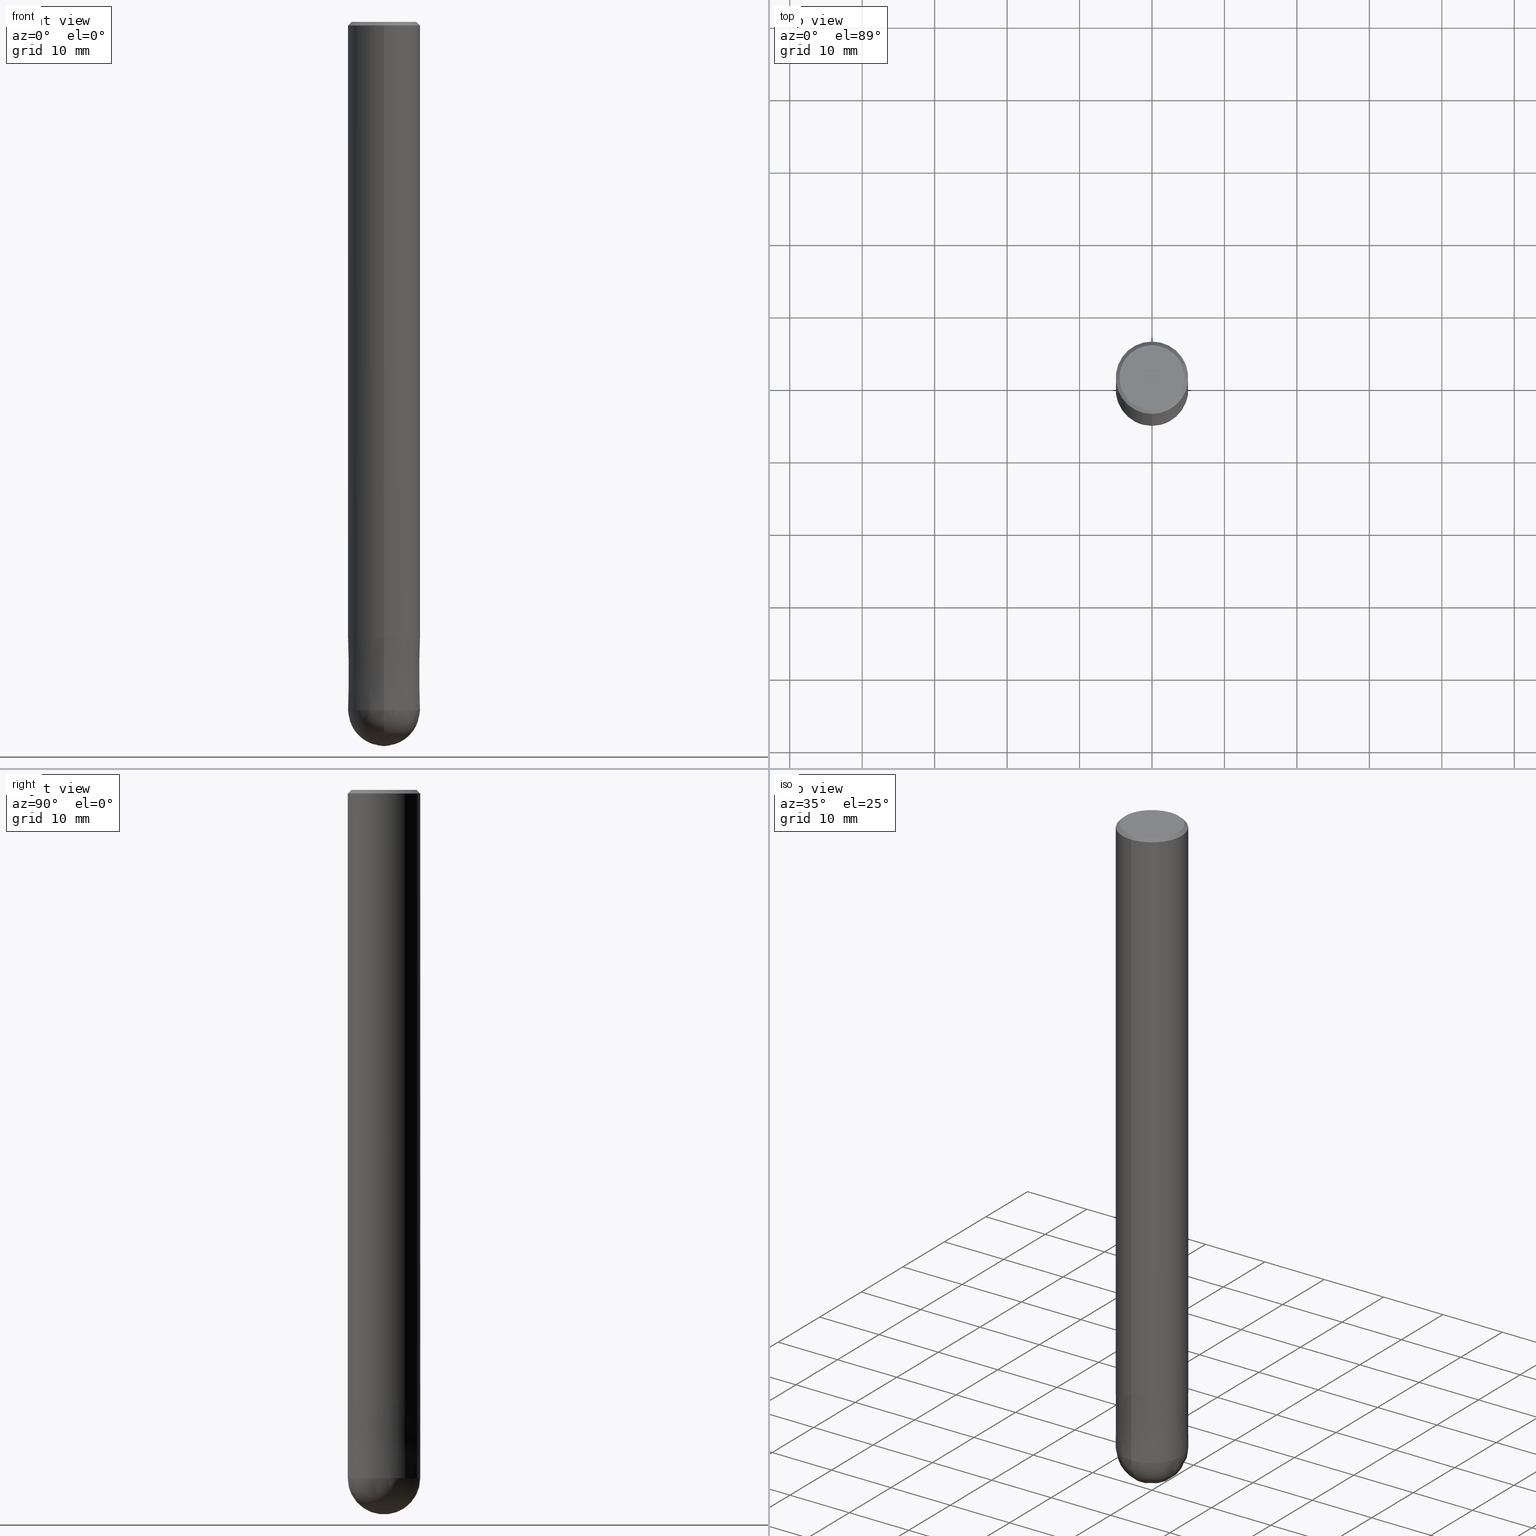
[diagram: canonical four-view strip — front | top / right | iso, engineering-drawing reading convention]
A machine part, canonical four-view strip (front | top / right | iso — engineering-drawing reading convention). The complete STEP part file that produces these views, byte-faithful:
ISO-10303-21;
HEADER;
FILE_DESCRIPTION(('no description'),'unknown implementation level');
FILE_NAME('HFB4100-1500-Huellk.stp','  ',('CIMSOURCE GmbH'),('CADClick - KiM GmbH - www.kimweb.de'),'unknown preprocess','ACIS','unknown authorization');
FILE_SCHEMA(('automotive_design'));
ENDSEC;
DATA;
#1=MECHANICAL_DESIGN_GEOMETRIC_PRESENTATION_REPRESENTATION(' ',(#10,#11,#12,#13,#14,#15,#16,#17,#18,#19,#20,#21,#22,#23,#24,#25,#26,#27,#28,#29,#30,#31,#32,#33,#34,#35,#36,#37,#38,#39,#40,#41,#42,#43,#44,#45,#46,#47),#6);
#2=PRODUCT_DEFINITION_CONTEXT('',#48,'design');
#3=APPLICATION_PROTOCOL_DEFINITION('INTERNATIONAL STANDARD','automotive_design',1994,#48);
#4=PRODUCT_CATEGORY_RELATIONSHIP('NONE','NONE',#49,#50);
#5=SHAPE_DEFINITION_REPRESENTATION(#51,#52);
#6= (GEOMETRIC_REPRESENTATION_CONTEXT(3)GLOBAL_UNCERTAINTY_ASSIGNED_CONTEXT((#55))GLOBAL_UNIT_ASSIGNED_CONTEXT((#57,#58,#59))REPRESENTATION_CONTEXT('NONE','WORKSPACE'));
#10=STYLED_ITEM('',(#61),#62);
#11=STYLED_ITEM('',(#63),#64);
#12=STYLED_ITEM('',(#65),#66);
#13=STYLED_ITEM('',(#67),#68);
#14=STYLED_ITEM('',(#69),#70);
#15=STYLED_ITEM('',(#71),#72);
#16=STYLED_ITEM('',(#73),#74);
#17=STYLED_ITEM('',(#75),#76);
#18=STYLED_ITEM('',(#77),#78);
#19=STYLED_ITEM('',(#79),#80);
#20=STYLED_ITEM('',(#81),#82);
#21=STYLED_ITEM('',(#83),#84);
#22=STYLED_ITEM('',(#85),#86);
#23=STYLED_ITEM('',(#87),#88);
#24=STYLED_ITEM('',(#89),#90);
#25=STYLED_ITEM('',(#91),#92);
#26=STYLED_ITEM('',(#93),#94);
#27=STYLED_ITEM('',(#95),#96);
#28=STYLED_ITEM('',(#97),#98);
#29=STYLED_ITEM('',(#99),#100);
#30=STYLED_ITEM('',(#101),#102);
#31=STYLED_ITEM('',(#103),#104);
#32=STYLED_ITEM('',(#105),#106);
#33=STYLED_ITEM('',(#107),#108);
#34=STYLED_ITEM('',(#109),#110);
#35=STYLED_ITEM('',(#111),#112);
#36=STYLED_ITEM('',(#113),#114);
#37=STYLED_ITEM('',(#115),#116);
#38=STYLED_ITEM('',(#117),#118);
#39=STYLED_ITEM('',(#119),#120);
#40=STYLED_ITEM('',(#121),#122);
#41=STYLED_ITEM('',(#123),#124);
#42=STYLED_ITEM('',(#125),#126);
#43=STYLED_ITEM('',(#127),#128);
#44=STYLED_ITEM('',(#129),#130);
#45=STYLED_ITEM('',(#131),#132);
#46=STYLED_ITEM('',(#133),#134);
#47=STYLED_ITEM('',(#135),#136);
#48=APPLICATION_CONTEXT(' ');
#49=PRODUCT_CATEGORY('part','NONE');
#50=PRODUCT_RELATED_PRODUCT_CATEGORY('detail',' ',(#137));
#51=PRODUCT_DEFINITION_SHAPE('NONE','NONE',#138);
#52=ADVANCED_BREP_SHAPE_REPRESENTATION('1',(#132,#139),#6);
#55=UNCERTAINTY_MEASURE_WITH_UNIT(LENGTH_MEASURE(1.0E-006),#57,'','');
#57= (CONVERSION_BASED_UNIT('MILLIMETRE',#142)LENGTH_UNIT()NAMED_UNIT(#145));
#58= (NAMED_UNIT(#147)PLANE_ANGLE_UNIT()SI_UNIT($,.RADIAN.));
#59= (NAMED_UNIT(#147)SOLID_ANGLE_UNIT()SI_UNIT($,.STERADIAN.));
#61=PRESENTATION_STYLE_ASSIGNMENT((#153));
#62=EDGE_CURVE('',#110,#116,#154,.T.);
#63=PRESENTATION_STYLE_ASSIGNMENT((#155));
#64=ADVANCED_FACE('',(#156),#157,.T.);
#65=PRESENTATION_STYLE_ASSIGNMENT((#158));
#66=VERTEX_POINT('',#159);
#67=PRESENTATION_STYLE_ASSIGNMENT((#160));
#68=EDGE_CURVE('',#134,#118,#161,.T.);
#69=PRESENTATION_STYLE_ASSIGNMENT((#162));
#70=ADVANCED_FACE('',(#163,#164),#165,.T.);
#71=PRESENTATION_STYLE_ASSIGNMENT((#166));
#72=VERTEX_POINT('',#167);
#73=PRESENTATION_STYLE_ASSIGNMENT((#168));
#74=EDGE_CURVE('',#136,#116,#169,.T.);
#75=PRESENTATION_STYLE_ASSIGNMENT((#170));
#76=VERTEX_POINT('',#171);
#77=PRESENTATION_STYLE_ASSIGNMENT((#172));
#78=EDGE_CURVE('',#130,#76,#173,.T.);
#79=PRESENTATION_STYLE_ASSIGNMENT((#174));
#80=EDGE_CURVE('',#72,#136,#175,.T.);
#81=PRESENTATION_STYLE_ASSIGNMENT((#176));
#82=EDGE_CURVE('',#76,#130,#177,.T.);
#83=PRESENTATION_STYLE_ASSIGNMENT((#178));
#84=ADVANCED_FACE('',(#179),#180,.T.);
#85=PRESENTATION_STYLE_ASSIGNMENT((#181));
#86=EDGE_CURVE('',#134,#130,#182,.T.);
#87=PRESENTATION_STYLE_ASSIGNMENT((#183));
#88=ADVANCED_FACE('',(#184),#185,.T.);
#89=PRESENTATION_STYLE_ASSIGNMENT((#186));
#90=EDGE_CURVE('',#66,#134,#187,.T.);
#91=PRESENTATION_STYLE_ASSIGNMENT((#188));
#92=ADVANCED_FACE('',(#189),#190,.T.);
#93=PRESENTATION_STYLE_ASSIGNMENT((#191));
#94=EDGE_CURVE('',#110,#116,#192,.T.);
#95=PRESENTATION_STYLE_ASSIGNMENT((#193));
#96=ADVANCED_FACE('',(#194),#195,.T.);
#97=PRESENTATION_STYLE_ASSIGNMENT((#196));
#98=ADVANCED_FACE('',(#197),#198,.T.);
#99=PRESENTATION_STYLE_ASSIGNMENT((#199));
#100=EDGE_CURVE('',#106,#66,#200,.T.);
#101=PRESENTATION_STYLE_ASSIGNMENT((#201));
#102=ADVANCED_FACE('',(#202),#203,.T.);
#103=PRESENTATION_STYLE_ASSIGNMENT((#204));
#104=EDGE_CURVE('',#66,#106,#205,.T.);
#105=PRESENTATION_STYLE_ASSIGNMENT((#206));
#106=VERTEX_POINT('',#207);
#107=PRESENTATION_STYLE_ASSIGNMENT((#208));
#108=ADVANCED_FACE('',(#209),#210,.T.);
#109=PRESENTATION_STYLE_ASSIGNMENT((#211));
#110=VERTEX_POINT('',#212);
#111=PRESENTATION_STYLE_ASSIGNMENT((#213));
#112=ADVANCED_FACE('',(#214),#215,.T.);
#113=PRESENTATION_STYLE_ASSIGNMENT((#216));
#114=EDGE_CURVE('',#110,#72,#217,.T.);
#115=PRESENTATION_STYLE_ASSIGNMENT((#218));
#116=VERTEX_POINT('',#219);
#117=PRESENTATION_STYLE_ASSIGNMENT((#220));
#118=VERTEX_POINT('',#221);
#119=PRESENTATION_STYLE_ASSIGNMENT((#222));
#120=EDGE_CURVE('',#118,#134,#223,.T.);
#121=PRESENTATION_STYLE_ASSIGNMENT((#224));
#122=EDGE_CURVE('',#116,#110,#225,.T.);
#123=PRESENTATION_STYLE_ASSIGNMENT((#226));
#124=EDGE_CURVE('',#118,#106,#227,.T.);
#125=PRESENTATION_STYLE_ASSIGNMENT((#228));
#126=EDGE_CURVE('',#136,#72,#229,.T.);
#127=PRESENTATION_STYLE_ASSIGNMENT((#230));
#128=EDGE_CURVE('',#76,#118,#231,.T.);
#129=PRESENTATION_STYLE_ASSIGNMENT((#232));
#130=VERTEX_POINT('',#233);
#131=PRESENTATION_STYLE_ASSIGNMENT((#234));
#132=MANIFOLD_SOLID_BREP('1',#235);
#133=PRESENTATION_STYLE_ASSIGNMENT((#236));
#134=VERTEX_POINT('',#237);
#135=PRESENTATION_STYLE_ASSIGNMENT((#238));
#136=VERTEX_POINT('',#239);
#137=PRODUCT('1','1','PART-1-DESC',(#240));
#138=PRODUCT_DEFINITION('NONE','NONE',#241,#2);
#139=AXIS2_PLACEMENT_3D('',#242,#243,#244);
#142=LENGTH_MEASURE_WITH_UNIT(LENGTH_MEASURE(1.0),#245);
#145=DIMENSIONAL_EXPONENTS(1.0,0.0,0.0,0.0,0.0,0.0,0.0);
#147=DIMENSIONAL_EXPONENTS(0.0,0.0,0.0,0.0,0.0,0.0,0.0);
#153=CURVE_STYLE('',#246,POSITIVE_LENGTH_MEASURE(1.0E-006),#247);
#154=CIRCLE('',#248,4.99999999999999);
#155=SURFACE_STYLE_USAGE(.BOTH.,#249);
#156=FACE_OUTER_BOUND('',#250,.T.);
#157=PLANE('',#251);
#158=POINT_STYLE(' ',#252,POSITIVE_LENGTH_MEASURE(1.0E-006),#253);
#159=CARTESIAN_POINT('',(6.12303176911189E-016,-5.0,-85.0));
#160=CURVE_STYLE('',#254,POSITIVE_LENGTH_MEASURE(1.0E-006),#255);
#161=CIRCLE('',#256,5.0);
#162=SURFACE_STYLE_USAGE(.BOTH.,#257);
#163=FACE_OUTER_BOUND('',#258,.T.);
#164=FACE_BOUND('',#259,.T.);
#165=PLANE('',#260);
#166=POINT_STYLE(' ',#261,POSITIVE_LENGTH_MEASURE(1.0E-006),#262);
#167=CARTESIAN_POINT('',(6.1229093084765E-016,-4.9999,-85.0));
#168=CURVE_STYLE('',#263,POSITIVE_LENGTH_MEASURE(1.0E-006),#264);
#169=LINE('',#265,#266);
#170=POINT_STYLE(' ',#267,POSITIVE_LENGTH_MEASURE(1.0E-006),#268);
#171=CARTESIAN_POINT('',(0.0,4.5,0.0));
#172=CURVE_STYLE('',#269,POSITIVE_LENGTH_MEASURE(1.0E-006),#270);
#173=CIRCLE('',#271,4.5);
#174=CURVE_STYLE('',#272,POSITIVE_LENGTH_MEASURE(1.0E-006),#273);
#175=CIRCLE('',#274,4.9999);
#176=CURVE_STYLE('',#275,POSITIVE_LENGTH_MEASURE(1.0E-006),#276);
#177=CIRCLE('',#277,4.5);
#178=SURFACE_STYLE_USAGE(.BOTH.,#278);
#179=FACE_OUTER_BOUND('',#279,.T.);
#180=CONICAL_SURFACE('',#280,4.99995,9.99999999973218E-006);
#181=CURVE_STYLE('',#281,POSITIVE_LENGTH_MEASURE(1.0E-006),#282);
#182=LINE('',#283,#284);
#183=SURFACE_STYLE_USAGE(.BOTH.,#285);
#184=FACE_OUTER_BOUND('',#286,.T.);
#185=CONICAL_SURFACE('',#287,4.75,0.785398163397448);
#186=CURVE_STYLE('',#288,POSITIVE_LENGTH_MEASURE(1.0E-006),#289);
#187=LINE('',#290,#291);
#188=SURFACE_STYLE_USAGE(.BOTH.,#292);
#189=FACE_OUTER_BOUND('',#293,.T.);
#190=CONICAL_SURFACE('',#294,4.75,0.785398163397448);
#191=CURVE_STYLE('',#295,POSITIVE_LENGTH_MEASURE(1.0E-006),#296);
#192=CIRCLE('',#297,5.0);
#193=SURFACE_STYLE_USAGE(.BOTH.,#298);
#194=FACE_OUTER_BOUND('',#299,.T.);
#195=SPHERICAL_SURFACE('',#300,4.99999999999999);
#196=SURFACE_STYLE_USAGE(.BOTH.,#301);
#197=FACE_OUTER_BOUND('',#302,.T.);
#198=SPHERICAL_SURFACE('',#303,4.99999999999999);
#199=CURVE_STYLE('',#304,POSITIVE_LENGTH_MEASURE(1.0E-006),#305);
#200=CIRCLE('',#306,5.0);
#201=SURFACE_STYLE_USAGE(.BOTH.,#307);
#202=FACE_OUTER_BOUND('',#308,.T.);
#203=CONICAL_SURFACE('',#309,4.99995,9.99999999973218E-006);
#204=CURVE_STYLE('',#310,POSITIVE_LENGTH_MEASURE(1.0E-006),#311);
#205=CIRCLE('',#312,5.0);
#206=POINT_STYLE(' ',#313,POSITIVE_LENGTH_MEASURE(1.0E-006),#314);
#207=CARTESIAN_POINT('',(0.0,5.0,-85.0));
#208=SURFACE_STYLE_USAGE(.BOTH.,#315);
#209=FACE_OUTER_BOUND('',#316,.T.);
#210=CYLINDRICAL_SURFACE('',#317,5.0);
#211=POINT_STYLE(' ',#318,POSITIVE_LENGTH_MEASURE(1.0E-006),#319);
#212=CARTESIAN_POINT('',(6.12303176911188E-016,-5.0,-95.0));
#213=SURFACE_STYLE_USAGE(.BOTH.,#320);
#214=FACE_OUTER_BOUND('',#321,.T.);
#215=CYLINDRICAL_SURFACE('',#322,5.0);
#216=CURVE_STYLE('',#323,POSITIVE_LENGTH_MEASURE(1.0E-006),#324);
#217=LINE('',#325,#326);
#218=POINT_STYLE(' ',#327,POSITIVE_LENGTH_MEASURE(1.0E-006),#328);
#219=CARTESIAN_POINT('',(0.0,5.0,-95.0));
#220=POINT_STYLE(' ',#329,POSITIVE_LENGTH_MEASURE(1.0E-006),#330);
#221=CARTESIAN_POINT('',(0.0,5.0,-0.5));
#222=CURVE_STYLE('',#331,POSITIVE_LENGTH_MEASURE(1.0E-006),#332);
#223=CIRCLE('',#333,5.0);
#224=CURVE_STYLE('',#334,POSITIVE_LENGTH_MEASURE(1.0E-006),#335);
#225=CIRCLE('',#336,5.0);
#226=CURVE_STYLE('',#337,POSITIVE_LENGTH_MEASURE(1.0E-006),#338);
#227=LINE('',#339,#340);
#228=CURVE_STYLE('',#341,POSITIVE_LENGTH_MEASURE(1.0E-006),#342);
#229=CIRCLE('',#343,4.9999);
#230=CURVE_STYLE('',#344,POSITIVE_LENGTH_MEASURE(1.0E-006),#345);
#231=LINE('',#346,#347);
#232=POINT_STYLE(' ',#348,POSITIVE_LENGTH_MEASURE(1.0E-006),#349);
#233=CARTESIAN_POINT('',(5.5107285922007E-016,-4.5,0.0));
#234=SURFACE_STYLE_USAGE(.BOTH.,#350);
#235=CLOSED_SHELL('',(#96,#84,#112,#92,#70,#64,#88,#108,#102,#98));
#236=POINT_STYLE(' ',#351,POSITIVE_LENGTH_MEASURE(1.0E-006),#352);
#237=CARTESIAN_POINT('',(6.12303176911189E-016,-5.0,-0.5));
#238=POINT_STYLE(' ',#353,POSITIVE_LENGTH_MEASURE(1.0E-006),#354);
#239=CARTESIAN_POINT('',(0.0,4.9999,-85.0));
#240=PRODUCT_CONTEXT('',#48,'mechanical');
#241=PRODUCT_DEFINITION_FORMATION_WITH_SPECIFIED_SOURCE(' ','NONE',#137,.NOT_KNOWN.);
#242=CARTESIAN_POINT('',(0.0,0.0,0.0));
#243=DIRECTION('',(0.0,0.0,1.0));
#244=DIRECTION('',(1.0,0.0,0.0));
#245= (NAMED_UNIT(#145)LENGTH_UNIT()SI_UNIT(.MILLI.,.METRE.));
#246=DRAUGHTING_PRE_DEFINED_CURVE_FONT('continuous');
#247=COLOUR_RGB('',0.800000011920929,0.800000011920929,0.800000011920929);
#248=AXIS2_PLACEMENT_3D('',#356,#357,#358);
#249=SURFACE_SIDE_STYLE('',(#359));
#250=EDGE_LOOP('',(#360,#361));
#251=AXIS2_PLACEMENT_3D('',#362,#363,#364);
#252=PRE_DEFINED_MARKER('');
#253=COLOUR_RGB('',0.498039215803146,0.498039215803146,0.498039215803146);
#254=DRAUGHTING_PRE_DEFINED_CURVE_FONT('continuous');
#255=COLOUR_RGB('',0.498039215803146,0.498039215803146,0.498039215803146);
#256=AXIS2_PLACEMENT_3D('',#365,#366,#367);
#257=SURFACE_SIDE_STYLE('',(#368));
#258=EDGE_LOOP('',(#369,#370));
#259=EDGE_LOOP('',(#371,#372));
#260=AXIS2_PLACEMENT_3D('',#373,#374,#375);
#261=PRE_DEFINED_MARKER('');
#262=COLOUR_RGB('',0.800000011920929,0.800000011920929,0.800000011920929);
#263=DRAUGHTING_PRE_DEFINED_CURVE_FONT('continuous');
#264=COLOUR_RGB('',0.800000011920929,0.800000011920929,0.800000011920929);
#265=CARTESIAN_POINT('',(-6.12297053879419E-016,4.99995,-90.0));
#266=VECTOR('',#376,1.0);
#267=PRE_DEFINED_MARKER('');
#268=COLOUR_RGB('',0.498039215803146,0.498039215803146,0.498039215803146);
#269=DRAUGHTING_PRE_DEFINED_CURVE_FONT('continuous');
#270=COLOUR_RGB('',0.498039215803146,0.498039215803146,0.498039215803146);
#271=AXIS2_PLACEMENT_3D('',#377,#378,#379);
#272=DRAUGHTING_PRE_DEFINED_CURVE_FONT('continuous');
#273=COLOUR_RGB('',0.800000011920929,0.800000011920929,0.800000011920929);
#274=AXIS2_PLACEMENT_3D('',#380,#381,#382);
#275=DRAUGHTING_PRE_DEFINED_CURVE_FONT('continuous');
#276=COLOUR_RGB('',0.498039215803146,0.498039215803146,0.498039215803146);
#277=AXIS2_PLACEMENT_3D('',#383,#384,#385);
#278=SURFACE_SIDE_STYLE('',(#386));
#279=EDGE_LOOP('',(#387,#388,#389,#390));
#280=AXIS2_PLACEMENT_3D('',#391,#392,#393);
#281=DRAUGHTING_PRE_DEFINED_CURVE_FONT('continuous');
#282=COLOUR_RGB('',0.498039215803146,0.498039215803146,0.498039215803146);
#283=CARTESIAN_POINT('',(5.81688018065629E-016,-4.75,-0.25));
#284=VECTOR('',#394,1.0);
#285=SURFACE_SIDE_STYLE('',(#395));
#286=EDGE_LOOP('',(#396,#397,#398,#399));
#287=AXIS2_PLACEMENT_3D('',#400,#401,#402);
#288=DRAUGHTING_PRE_DEFINED_CURVE_FONT('continuous');
#289=COLOUR_RGB('',0.498039215803146,0.498039215803146,0.498039215803146);
#290=CARTESIAN_POINT('',(6.12303176911189E-016,-5.0,-42.75));
#291=VECTOR('',#403,1.0);
#292=SURFACE_SIDE_STYLE('',(#404));
#293=EDGE_LOOP('',(#405,#406,#407,#408));
#294=AXIS2_PLACEMENT_3D('',#409,#410,#411);
#295=DRAUGHTING_PRE_DEFINED_CURVE_FONT('continuous');
#296=COLOUR_RGB('',0.800000011920929,0.800000011920929,0.800000011920929);
#297=AXIS2_PLACEMENT_3D('',#412,#413,#414);
#298=SURFACE_SIDE_STYLE('',(#415));
#299=EDGE_LOOP('',(#416,#417));
#300=AXIS2_PLACEMENT_3D('',#418,#419,#420);
#301=SURFACE_SIDE_STYLE('',(#421));
#302=EDGE_LOOP('',(#422,#423));
#303=AXIS2_PLACEMENT_3D('',#424,#425,#426);
#304=DRAUGHTING_PRE_DEFINED_CURVE_FONT('continuous');
#305=COLOUR_RGB('',0.498039215803146,0.498039215803146,0.498039215803146);
#306=AXIS2_PLACEMENT_3D('',#427,#428,#429);
#307=SURFACE_SIDE_STYLE('',(#430));
#308=EDGE_LOOP('',(#431,#432,#433,#434));
#309=AXIS2_PLACEMENT_3D('',#435,#436,#437);
#310=DRAUGHTING_PRE_DEFINED_CURVE_FONT('continuous');
#311=COLOUR_RGB('',0.498039215803146,0.498039215803146,0.498039215803146);
#312=AXIS2_PLACEMENT_3D('',#438,#439,#440);
#313=PRE_DEFINED_MARKER('');
#314=COLOUR_RGB('',0.498039215803146,0.498039215803146,0.498039215803146);
#315=SURFACE_SIDE_STYLE('',(#441));
#316=EDGE_LOOP('',(#442,#443,#444,#445));
#317=AXIS2_PLACEMENT_3D('',#446,#447,#448);
#318=PRE_DEFINED_MARKER('');
#319=COLOUR_RGB('',0.800000011920929,0.800000011920929,0.800000011920929);
#320=SURFACE_SIDE_STYLE('',(#449));
#321=EDGE_LOOP('',(#450,#451,#452,#453));
#322=AXIS2_PLACEMENT_3D('',#454,#455,#456);
#323=DRAUGHTING_PRE_DEFINED_CURVE_FONT('continuous');
#324=COLOUR_RGB('',0.800000011920929,0.800000011920929,0.800000011920929);
#325=CARTESIAN_POINT('',(6.12297053879419E-016,-4.99995,-90.0));
#326=VECTOR('',#457,1.0);
#327=PRE_DEFINED_MARKER('');
#328=COLOUR_RGB('',0.800000011920929,0.800000011920929,0.800000011920929);
#329=PRE_DEFINED_MARKER('');
#330=COLOUR_RGB('',0.498039215803146,0.498039215803146,0.498039215803146);
#331=DRAUGHTING_PRE_DEFINED_CURVE_FONT('continuous');
#332=COLOUR_RGB('',0.498039215803146,0.498039215803146,0.498039215803146);
#333=AXIS2_PLACEMENT_3D('',#458,#459,#460);
#334=DRAUGHTING_PRE_DEFINED_CURVE_FONT('continuous');
#335=COLOUR_RGB('',0.800000011920929,0.800000011920929,0.800000011920929);
#336=AXIS2_PLACEMENT_3D('',#461,#462,#463);
#337=DRAUGHTING_PRE_DEFINED_CURVE_FONT('continuous');
#338=COLOUR_RGB('',0.498039215803146,0.498039215803146,0.498039215803146);
#339=CARTESIAN_POINT('',(-6.12303176911189E-016,5.0,-42.75));
#340=VECTOR('',#464,1.0);
#341=DRAUGHTING_PRE_DEFINED_CURVE_FONT('continuous');
#342=COLOUR_RGB('',0.800000011920929,0.800000011920929,0.800000011920929);
#343=AXIS2_PLACEMENT_3D('',#465,#466,#467);
#344=DRAUGHTING_PRE_DEFINED_CURVE_FONT('continuous');
#345=COLOUR_RGB('',0.498039215803146,0.498039215803146,0.498039215803146);
#346=CARTESIAN_POINT('',(-5.81688018065629E-016,4.75,-0.25));
#347=VECTOR('',#468,1.0);
#348=PRE_DEFINED_MARKER('');
#349=COLOUR_RGB('',0.498039215803146,0.498039215803146,0.498039215803146);
#350=SURFACE_SIDE_STYLE('',(#469));
#351=PRE_DEFINED_MARKER('');
#352=COLOUR_RGB('',0.498039215803146,0.498039215803146,0.498039215803146);
#353=PRE_DEFINED_MARKER('');
#354=COLOUR_RGB('',0.800000011920929,0.800000011920929,0.800000011920929);
#356=CARTESIAN_POINT('',(0.0,0.0,-95.0));
#357=DIRECTION('',(1.0,0.0,1.22460635382238E-016));
#358=DIRECTION('',(-1.22460635382238E-016,0.0,1.0));
#359=SURFACE_STYLE_FILL_AREA(#470);
#360=ORIENTED_EDGE('',*,*,#82,.F.);
#361=ORIENTED_EDGE('',*,*,#78,.F.);
#362=CARTESIAN_POINT('',(0.0,2.25,0.0));
#363=DIRECTION('',(-0.0,0.0,1.0));
#364=DIRECTION('',(0.0,-1.0,0.0));
#365=CARTESIAN_POINT('',(0.0,0.0,-0.5));
#366=DIRECTION('',(0.0,0.0,-1.0));
#367=DIRECTION('',(0.0,1.0,0.0));
#368=SURFACE_STYLE_FILL_AREA(#471);
#369=ORIENTED_EDGE('',*,*,#100,.T.);
#370=ORIENTED_EDGE('',*,*,#104,.T.);
#371=ORIENTED_EDGE('',*,*,#126,.F.);
#372=ORIENTED_EDGE('',*,*,#80,.F.);
#373=CARTESIAN_POINT('',(0.0,2.5,-85.0));
#374=DIRECTION('',(0.0,0.0,-1.0));
#375=DIRECTION('',(0.0,1.0,0.0));
#376=DIRECTION('',(-1.22460635376917E-021,9.99999999956551E-006,-0.99999999995));
#377=CARTESIAN_POINT('',(0.0,0.0,0.0));
#378=DIRECTION('',(0.0,0.0,-1.0));
#379=DIRECTION('',(0.0,1.0,0.0));
#380=CARTESIAN_POINT('',(0.0,0.0,-85.0));
#381=DIRECTION('',(0.0,0.0,-1.0));
#382=DIRECTION('',(0.0,1.0,0.0));
#383=CARTESIAN_POINT('',(0.0,0.0,0.0));
#384=DIRECTION('',(0.0,0.0,-1.0));
#385=DIRECTION('',(0.0,1.0,0.0));
#386=SURFACE_STYLE_FILL_AREA(#472);
#387=ORIENTED_EDGE('',*,*,#74,.F.);
#388=ORIENTED_EDGE('',*,*,#126,.T.);
#389=ORIENTED_EDGE('',*,*,#114,.F.);
#390=ORIENTED_EDGE('',*,*,#122,.F.);
#391=CARTESIAN_POINT('',(0.0,0.0,-90.0));
#392=DIRECTION('',(0.0,-0.0,-1.0));
#393=DIRECTION('',(0.0,1.0,0.0));
#394=DIRECTION('',(-8.65927457071936E-017,0.707106781186548,0.707106781186548));
#395=SURFACE_STYLE_FILL_AREA(#473);
#396=ORIENTED_EDGE('',*,*,#128,.T.);
#397=ORIENTED_EDGE('',*,*,#68,.F.);
#398=ORIENTED_EDGE('',*,*,#86,.T.);
#399=ORIENTED_EDGE('',*,*,#78,.T.);
#400=CARTESIAN_POINT('',(0.0,0.0,-0.25));
#401=DIRECTION('',(0.0,-0.0,-1.0));
#402=DIRECTION('',(0.0,1.0,0.0));
#403=DIRECTION('',(-0.0,-0.0,1.0));
#404=SURFACE_STYLE_FILL_AREA(#474);
#405=ORIENTED_EDGE('',*,*,#128,.F.);
#406=ORIENTED_EDGE('',*,*,#82,.T.);
#407=ORIENTED_EDGE('',*,*,#86,.F.);
#408=ORIENTED_EDGE('',*,*,#120,.F.);
#409=CARTESIAN_POINT('',(0.0,0.0,-0.25));
#410=DIRECTION('',(0.0,-0.0,-1.0));
#411=DIRECTION('',(0.0,1.0,0.0));
#412=CARTESIAN_POINT('',(0.0,0.0,-95.0));
#413=DIRECTION('',(0.0,0.0,-1.0));
#414=DIRECTION('',(0.0,1.0,0.0));
#415=SURFACE_STYLE_FILL_AREA(#475);
#416=ORIENTED_EDGE('',*,*,#62,.F.);
#417=ORIENTED_EDGE('',*,*,#94,.T.);
#418=CARTESIAN_POINT('',(0.0,0.0,-95.0));
#419=DIRECTION('',(0.0,1.0,0.0));
#420=DIRECTION('',(0.0,0.0,-1.0));
#421=SURFACE_STYLE_FILL_AREA(#476);
#422=ORIENTED_EDGE('',*,*,#62,.T.);
#423=ORIENTED_EDGE('',*,*,#122,.T.);
#424=CARTESIAN_POINT('',(0.0,0.0,-95.0));
#425=DIRECTION('',(0.0,1.0,0.0));
#426=DIRECTION('',(0.0,0.0,-1.0));
#427=CARTESIAN_POINT('',(0.0,0.0,-85.0));
#428=DIRECTION('',(0.0,0.0,-1.0));
#429=DIRECTION('',(0.0,1.0,0.0));
#430=SURFACE_STYLE_FILL_AREA(#477);
#431=ORIENTED_EDGE('',*,*,#74,.T.);
#432=ORIENTED_EDGE('',*,*,#94,.F.);
#433=ORIENTED_EDGE('',*,*,#114,.T.);
#434=ORIENTED_EDGE('',*,*,#80,.T.);
#435=CARTESIAN_POINT('',(0.0,0.0,-90.0));
#436=DIRECTION('',(0.0,-0.0,-1.0));
#437=DIRECTION('',(0.0,1.0,0.0));
#438=CARTESIAN_POINT('',(0.0,0.0,-85.0));
#439=DIRECTION('',(0.0,0.0,-1.0));
#440=DIRECTION('',(0.0,1.0,0.0));
#441=SURFACE_STYLE_FILL_AREA(#478);
#442=ORIENTED_EDGE('',*,*,#124,.T.);
#443=ORIENTED_EDGE('',*,*,#104,.F.);
#444=ORIENTED_EDGE('',*,*,#90,.T.);
#445=ORIENTED_EDGE('',*,*,#68,.T.);
#446=CARTESIAN_POINT('',(0.0,0.0,-42.75));
#447=DIRECTION('',(-0.0,-0.0,1.0));
#448=DIRECTION('',(0.0,1.0,0.0));
#449=SURFACE_STYLE_FILL_AREA(#479);
#450=ORIENTED_EDGE('',*,*,#124,.F.);
#451=ORIENTED_EDGE('',*,*,#120,.T.);
#452=ORIENTED_EDGE('',*,*,#90,.F.);
#453=ORIENTED_EDGE('',*,*,#100,.F.);
#454=CARTESIAN_POINT('',(0.0,0.0,-42.75));
#455=DIRECTION('',(-0.0,-0.0,1.0));
#456=DIRECTION('',(0.0,1.0,0.0));
#457=DIRECTION('',(-1.22460635376917E-021,9.99999999956551E-006,0.99999999995));
#458=CARTESIAN_POINT('',(0.0,0.0,-0.5));
#459=DIRECTION('',(0.0,0.0,-1.0));
#460=DIRECTION('',(0.0,1.0,0.0));
#461=CARTESIAN_POINT('',(0.0,0.0,-95.0));
#462=DIRECTION('',(0.0,0.0,-1.0));
#463=DIRECTION('',(0.0,1.0,0.0));
#464=DIRECTION('',(0.0,0.0,-1.0));
#465=CARTESIAN_POINT('',(0.0,0.0,-85.0));
#466=DIRECTION('',(0.0,0.0,-1.0));
#467=DIRECTION('',(0.0,1.0,0.0));
#468=DIRECTION('',(-8.65927457071936E-017,0.707106781186548,-0.707106781186548));
#469=SURFACE_STYLE_FILL_AREA(#480);
#470=FILL_AREA_STYLE('',(#481));
#471=FILL_AREA_STYLE('',(#482));
#472=FILL_AREA_STYLE('',(#483));
#473=FILL_AREA_STYLE('',(#484));
#474=FILL_AREA_STYLE('',(#485));
#475=FILL_AREA_STYLE('',(#486));
#476=FILL_AREA_STYLE('',(#487));
#477=FILL_AREA_STYLE('',(#488));
#478=FILL_AREA_STYLE('',(#489));
#479=FILL_AREA_STYLE('',(#490));
#480=FILL_AREA_STYLE('',(#491));
#481=FILL_AREA_STYLE_COLOUR('',#492);
#482=FILL_AREA_STYLE_COLOUR('',#493);
#483=FILL_AREA_STYLE_COLOUR('',#494);
#484=FILL_AREA_STYLE_COLOUR('',#495);
#485=FILL_AREA_STYLE_COLOUR('',#496);
#486=FILL_AREA_STYLE_COLOUR('',#497);
#487=FILL_AREA_STYLE_COLOUR('',#498);
#488=FILL_AREA_STYLE_COLOUR('',#499);
#489=FILL_AREA_STYLE_COLOUR('',#500);
#490=FILL_AREA_STYLE_COLOUR('',#501);
#491=FILL_AREA_STYLE_COLOUR('',#502);
#492=COLOUR_RGB('',0.498039215803146,0.498039215803146,0.498039215803146);
#493=COLOUR_RGB('',0.498039215803146,0.498039215803146,0.498039215803146);
#494=COLOUR_RGB('',0.800000011920929,0.800000011920929,0.800000011920929);
#495=COLOUR_RGB('',0.498039215803146,0.498039215803146,0.498039215803146);
#496=COLOUR_RGB('',0.498039215803146,0.498039215803146,0.498039215803146);
#497=COLOUR_RGB('',0.800000011920929,0.800000011920929,0.800000011920929);
#498=COLOUR_RGB('',0.800000011920929,0.800000011920929,0.800000011920929);
#499=COLOUR_RGB('',0.800000011920929,0.800000011920929,0.800000011920929);
#500=COLOUR_RGB('',0.498039215803146,0.498039215803146,0.498039215803146);
#501=COLOUR_RGB('',0.498039215803146,0.498039215803146,0.498039215803146);
#502=COLOUR_RGB('',0.800000011920929,0.800000011920929,0.800000011920929);
#503=AXIS2_PLACEMENT_3D('PCS',#504,#505,#506);
#504=CARTESIAN_POINT('',(0.0,0.0,0.0));
#505=DIRECTION('',(0.0,0.0,1.0));
#506=DIRECTION('',(1.0,0.0,0.0));
#507=AXIS2_PLACEMENT_3D('CIP',#508,#509,#510);
#508=CARTESIAN_POINT('',(0.0,0.0,-100.0));
#509=DIRECTION('',(0.0,0.0,1.0));
#510=DIRECTION('',(1.0,0.0,0.0));
#511=AXIS2_PLACEMENT_3D('CRP',#512,#513,#514);
#512=CARTESIAN_POINT('',(-5.0,0.0,-100.0));
#513=DIRECTION('',(0.0,0.0,1.0));
#514=DIRECTION('',(1.0,0.0,0.0));
#515=AXIS2_PLACEMENT_3D('MCS',#516,#517,#518);
#516=CARTESIAN_POINT('',(0.0,0.0,-85.0));
#517=DIRECTION('',(0.0,0.0,1.0));
#518=DIRECTION('',(1.0,0.0,0.0));
#519=CONSTRUCTIVE_GEOMETRY_REPRESENTATION_RELATIONSHIP('coordinate systems',$,#52,#520);
#520=CONSTRUCTIVE_GEOMETRY_REPRESENTATION('coordinate systems',(#503,#507,#511,#515),#6);
ENDSEC;
END-ISO-10303-21;
